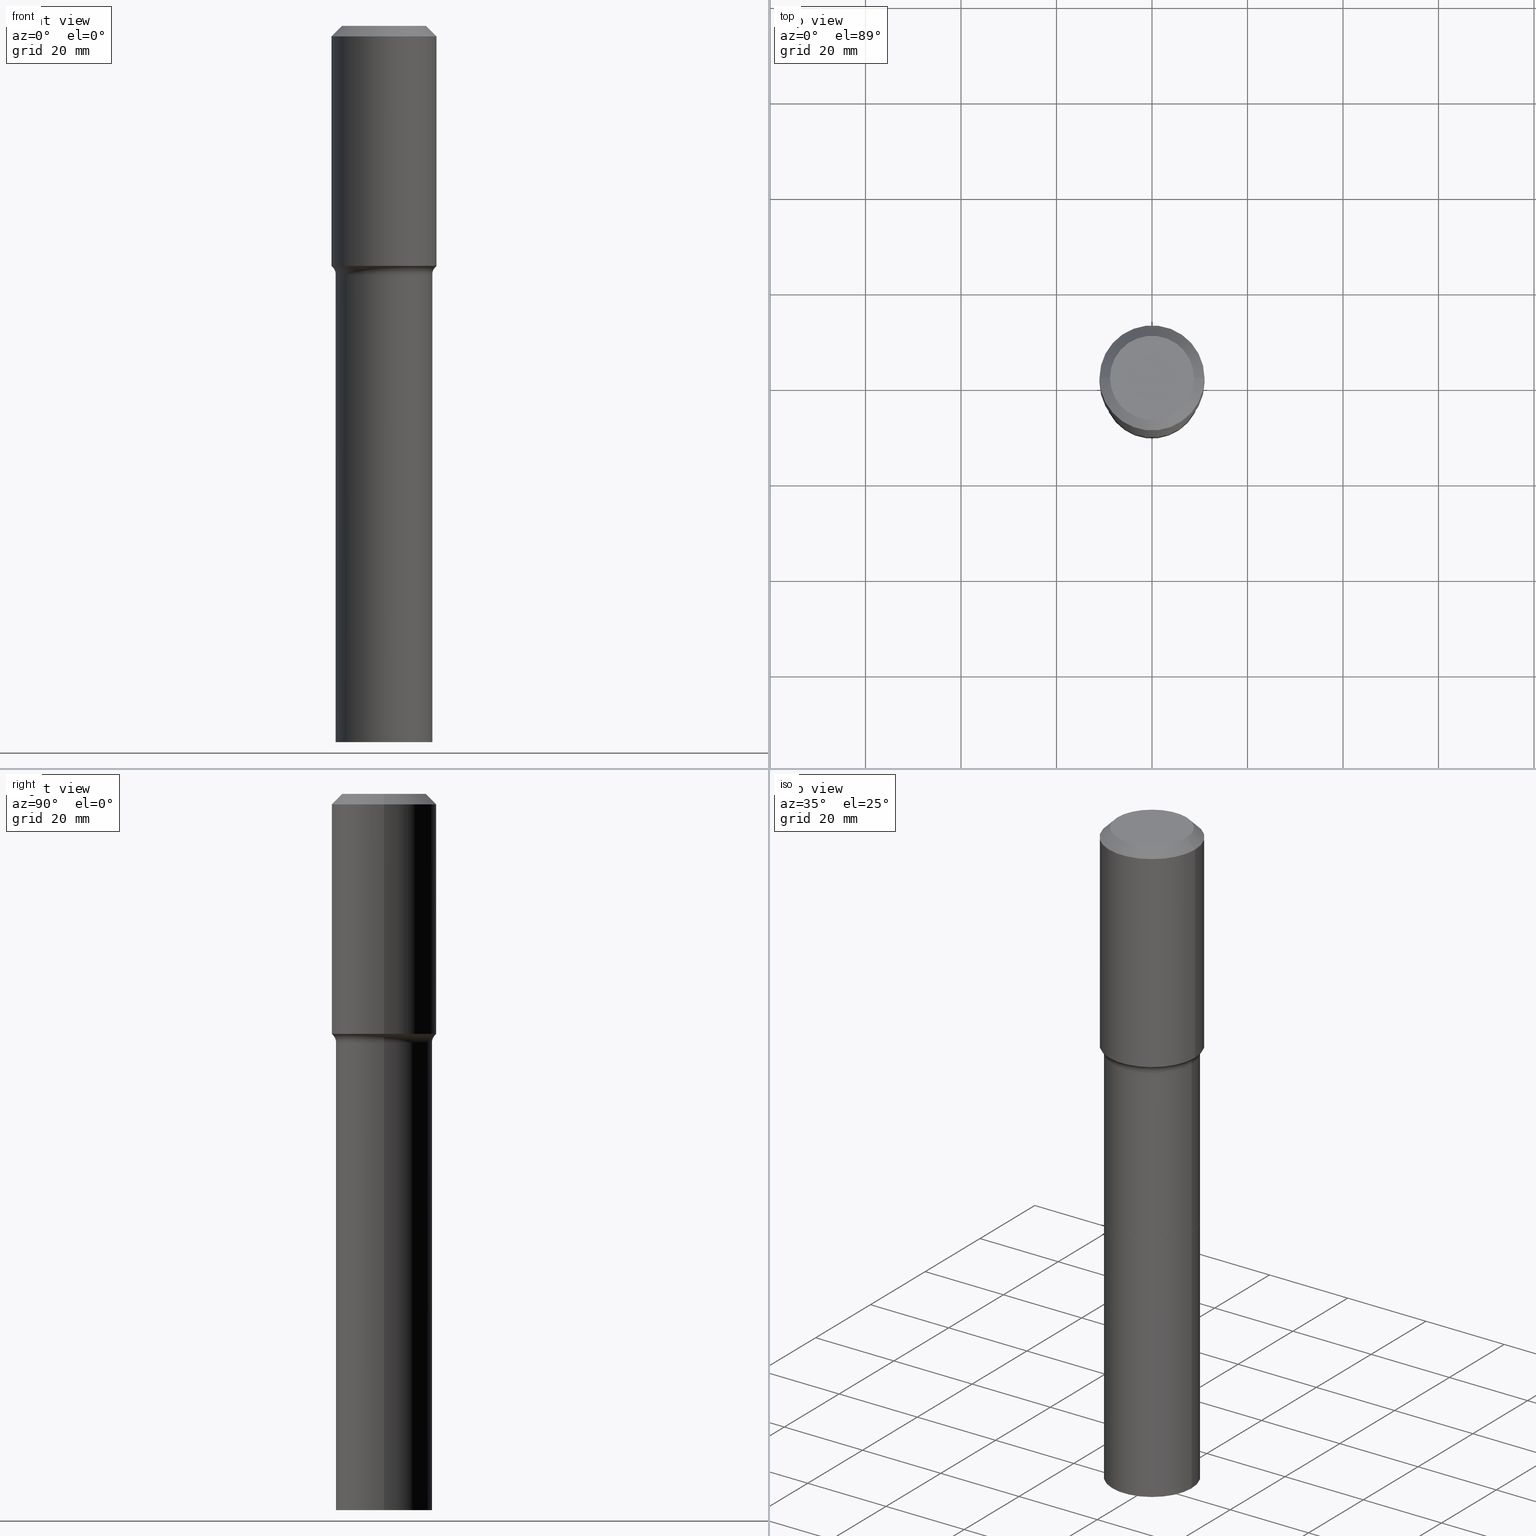
[diagram: canonical four-view strip — front | top / right | iso, engineering-drawing reading convention]
A machine part, canonical four-view strip (front | top / right | iso — engineering-drawing reading convention). The complete STEP part file that produces these views, byte-faithful:
ISO-10303-21;
HEADER;
FILE_DESCRIPTION (( 'STEP AP203' ),
    '1' );
FILE_NAME ('58864.STEP',
    '2025-04-01T15:25:54',
    ( '' ),
    ( '' ),
    'SwSTEP 2.0',
    'SolidWorks 2024',
    '' );
FILE_SCHEMA (( 'CONFIG_CONTROL_DESIGN' ));
ENDSEC;

DATA;
#1 = PERSON_AND_ORGANIZATION ( #171, #297 ) ;
#2 = CIRCLE ( 'NONE', #316, 0.3984500000000000264 ) ;
#3 = SHAPE_DEFINITION_REPRESENTATION ( #134, #43 ) ;
#4 = ADVANCED_FACE ( 'NONE', ( #234 ), #505, .T. ) ;
#5 = CC_DESIGN_PERSON_AND_ORGANIZATION_ASSIGNMENT ( #484, #292, ( #285 ) ) ;
#6 = AXIS2_PLACEMENT_3D ( 'NONE', #232, #419, #158 ) ;
#7 = EDGE_CURVE ( 'NONE', #50, #20, #483, .T. ) ;
#8 = ORIENTED_EDGE ( 'NONE', *, *, #40, .F. ) ;
#9 = FACE_OUTER_BOUND ( 'NONE', #105, .T. ) ;
#10 = ORIENTED_EDGE ( 'NONE', *, *, #103, .T. ) ;
#11 = DIRECTION ( 'NONE',  ( 1.000000000000000000, -6.982962677686268288E-15, 0.000000000000000000 ) ) ;
#12 = CARTESIAN_POINT ( 'NONE',  ( 2.118020533036960747E-30, -3.023971987572067913E-16, -0.08661000000000056154 ) ) ;
#13 = ORIENTED_EDGE ( 'NONE', *, *, #488, .F. ) ;
#14 = CARTESIAN_POINT ( 'NONE',  ( 0.000000000000000000, 0.000000000000000000, 0.000000000000000000 ) ) ;
#15 = DIRECTION ( 'NONE',  ( 1.000000000000000000, -6.982962677686264344E-15, 0.000000000000000000 ) ) ;
#16 = CIRCLE ( 'NONE', #453, 0.4330500000000002681 ) ;
#17 = AXIS2_PLACEMENT_3D ( 'NONE', #14, #107, #422 ) ;
#18 = ORIENTED_EDGE ( 'NONE', *, *, #167, .T. ) ;
#19 = FACE_OUTER_BOUND ( 'NONE', #183, .T. ) ;
#20 = VERTEX_POINT ( 'NONE', #220 ) ;
#21 = CARTESIAN_POINT ( 'NONE',  ( 2.118020533036960747E-30, -3.023971987572067913E-16, -0.08661000000000056154 ) ) ;
#22 = EDGE_CURVE ( 'NONE', #305, #95, #100, .T. ) ;
#23 = DIRECTION ( 'NONE',  ( -2.445468806185136597E-29, 3.491481338843145583E-15, 1.000000000000000000 ) ) ;
#24 = ORIENTED_EDGE ( 'NONE', *, *, #175, .T. ) ;
#25 = ORIENTED_EDGE ( 'NONE', *, *, #206, .F. ) ;
#26 = EDGE_LOOP ( 'NONE', ( #24, #420, #491, #264 ) ) ;
#27 = CARTESIAN_POINT ( 'NONE',  ( 0.4199417038704662541, -9.890750522430396773E-15, -1.992940131194999465 ) ) ;
#28 = DIRECTION ( 'NONE',  ( 0.7071067811864026886, -2.468850131080739687E-15, 0.7071067811866923458 ) ) ;
#29 = FACE_OUTER_BOUND ( 'NONE', #179, .T. ) ;
#30 = CARTESIAN_POINT ( 'NONE',  ( 0.4330500000000000460, -3.326369186329244629E-15, -0.08661000000000056154 ) ) ;
#31 = AXIS2_PLACEMENT_3D ( 'NONE', #255, #335, #151 ) ;
#32 = EDGE_CURVE ( 'NONE', #92, #259, #84, .T. ) ;
#33 = VECTOR ( 'NONE', #241, 39.37007874015748143 ) ;
#34 = PLANE ( 'NONE',  #405 ) ;
#35 = CARTESIAN_POINT ( 'NONE',  ( -0.4330500000000001570, 3.077005317209114971E-15, -2.130144840834887965E-29 ) ) ;
#36 = PERSON_AND_ORGANIZATION_ROLE ( 'design_owner' ) ;
#37 = APPLICATION_CONTEXT ( 'configuration controlled 3d designs of mechanical parts and assemblies' ) ;
#38 = VECTOR ( 'NONE', #197, 39.37007874015748143 ) ;
#39 = DIRECTION ( 'NONE',  ( -1.000000000000000000, 6.982962677686265922E-15, -4.876176775795935793E-29 ) ) ;
#40 = EDGE_CURVE ( 'NONE', #141, #424, #223, .T. ) ;
#41 = PERSON_AND_ORGANIZATION_ROLE ( 'classification_officer' ) ;
#42 = LINE ( 'NONE', #440, #357 ) ;
#43 = ADVANCED_BREP_SHAPE_REPRESENTATION ( '58864', ( #312, #144, #379 ), #411 ) ;
#44 = EDGE_CURVE ( 'NONE', #374, #141, #463, .T. ) ;
#45 = DATE_AND_TIME ( #136, #178 ) ;
#46 = AXIS2_PLACEMENT_3D ( 'NONE', #118, #432, #311 ) ;
#47 = CIRCLE ( 'NONE', #318, 0.3984500000000000264 ) ;
#48 = DATE_TIME_ROLE ( 'classification_date' ) ;
#49 = ADVANCED_FACE ( 'NONE', ( #19 ), #364, .T. ) ;
#50 = VERTEX_POINT ( 'NONE', #417 ) ;
#51 = AXIS2_PLACEMENT_3D ( 'NONE', #310, #507, #457 ) ;
#52 = CARTESIAN_POINT ( 'NONE',  ( 0.000000000000000000, 0.000000000000000000, 0.000000000000000000 ) ) ;
#53 = VERTEX_POINT ( 'NONE', #455 ) ;
#54 = ORIENTED_EDGE ( 'NONE', *, *, #448, .T. ) ;
#55 = CARTESIAN_POINT ( 'NONE',  ( -0.3984500000000000264, -9.631685108364488032E-15, -3.569499999999999673 ) ) ;
#56 = ORIENTED_EDGE ( 'NONE', *, *, #213, .T. ) ;
#57 = CYLINDRICAL_SURFACE ( 'NONE', #17, 0.4330500000000001570 ) ;
#58 = DIRECTION ( 'NONE',  ( 7.105427357601001859E-15, 1.000000000000000000, -3.491481338843145583E-15 ) ) ;
#59 = ADVANCED_FACE ( 'NONE', ( #9 ), #383, .F. ) ;
#60 = APPROVAL ( #450, 'UNSPECIFIED' ) ;
#61 = ORIENTED_EDGE ( 'NONE', *, *, #415, .T. ) ;
#62 = DIRECTION ( 'NONE',  ( 1.000000000000000000, -6.982962677686264344E-15, 0.000000000000000000 ) ) ;
#63 = VECTOR ( 'NONE', #281, 39.37007874015748143 ) ;
#64 = ORIENTED_EDGE ( 'NONE', *, *, #81, .F. ) ;
#65 = CARTESIAN_POINT ( 'NONE',  ( 8.729100903677844984E-29, -1.246284263900060702E-14, -3.569499999999999673 ) ) ;
#66 = VERTEX_POINT ( 'NONE', #109 ) ;
#67 = DIRECTION ( 'NONE',  ( 1.000000000000000000, -6.982962677686265922E-15, 4.876202609618050646E-29 ) ) ;
#68 = FACE_OUTER_BOUND ( 'NONE', #161, .T. ) ;
#69 = CYLINDRICAL_SURFACE ( 'NONE', #132, 0.3984500000000000264 ) ;
#70 = DIRECTION ( 'NONE',  ( 1.000000000000000000, -6.982962677686264344E-15, 0.000000000000000000 ) ) ;
#71 = FACE_OUTER_BOUND ( 'NONE', #332, .T. ) ;
#72 = ADVANCED_FACE ( 'NONE', ( #429 ), #69, .T. ) ;
#73 = DIRECTION ( 'NONE',  ( -2.445468806185136597E-29, 3.491481338843145583E-15, 1.000000000000000000 ) ) ;
#74 = CARTESIAN_POINT ( 'NONE',  ( -0.3984500000000000264, -6.973794939170142747E-15, -3.568999999999999506 ) ) ;
#75 = DIRECTION ( 'NONE',  ( 1.000000000000000000, -6.982962677686266711E-15, 0.000000000000000000 ) ) ;
#76 = VECTOR ( 'NONE', #145, 39.37007874015748143 ) ;
#77 = APPROVAL_PERSON_ORGANIZATION ( #360, #367, #518 ) ;
#78 = DIRECTION ( 'NONE',  ( 1.000000000000000000, -6.982962677686268288E-15, 0.000000000000000000 ) ) ;
#79 = DIRECTION ( 'NONE',  ( -2.445468806185136597E-29, 3.491481338843145583E-15, 1.000000000000000000 ) ) ;
#80 = MECHANICAL_CONTEXT ( 'NONE', #486, 'mechanical' ) ;
#81 = EDGE_CURVE ( 'NONE', #53, #50, #155, .T. ) ;
#82 = DIRECTION ( 'NONE',  ( -2.445468806185136597E-29, 3.491481338843145583E-15, 1.000000000000000000 ) ) ;
#83 = PRODUCT_RELATED_PRODUCT_CATEGORY ( 'detail', '', ( #462 ) ) ;
#84 = CIRCLE ( 'NONE', #295, 0.4330500000000002681 ) ;
#85 = DIRECTION ( 'NONE',  ( 2.438088387897960049E-29, -3.491481338843145188E-15, -1.000000000000000000 ) ) ;
#86 = PERSON_AND_ORGANIZATION ( #171, #297 ) ;
#87 = EDGE_CURVE ( 'NONE', #456, #374, #148, .T. ) ;
#88 = CALENDAR_DATE ( 2025, 1, 4 ) ;
#89 = PERSON_AND_ORGANIZATION_ROLE ( 'creator' ) ;
#90 = AXIS2_PLACEMENT_3D ( 'NONE', #514, #385, #499 ) ;
#91 = SECURITY_CLASSIFICATION_LEVEL ( 'unclassified' ) ;
#92 = VERTEX_POINT ( 'NONE', #301 ) ;
#93 = CC_DESIGN_PERSON_AND_ORGANIZATION_ASSIGNMENT ( #366, #89, ( #285 ) ) ;
#94 = ORIENTED_EDGE ( 'NONE', *, *, #478, .T. ) ;
#95 = VERTEX_POINT ( 'NONE', #471 ) ;
#96 = CARTESIAN_POINT ( 'NONE',  ( 0.3984500000000000264, -1.524520411792469959E-14, -3.569499999999999673 ) ) ;
#97 = AXIS2_PLACEMENT_3D ( 'NONE', #266, #102, #511 ) ;
#98 = VECTOR ( 'NONE', #240, 39.37007874015748143 ) ;
#99 = DIRECTION ( 'NONE',  ( 1.000000000000000000, -6.982962677686264344E-15, 0.000000000000000000 ) ) ;
#100 = CIRCLE ( 'NONE', #508, 0.4199417038704662541 ) ;
#101 = ORIENTED_EDGE ( 'NONE', *, *, #206, .T. ) ;
#102 = DIRECTION ( 'NONE',  ( -2.445468806185136597E-29, 3.491481338843145583E-15, 1.000000000000000000 ) ) ;
#103 = EDGE_CURVE ( 'NONE', #305, #424, #251, .T. ) ;
#104 = EDGE_CURVE ( 'NONE', #418, #141, #323, .T. ) ;
#105 = EDGE_LOOP ( 'NONE', ( #249, #152 ) ) ;
#106 = ORIENTED_EDGE ( 'NONE', *, *, #291, .T. ) ;
#107 = DIRECTION ( 'NONE',  ( -2.445468806185136597E-29, 3.491481338843145583E-15, 1.000000000000000000 ) ) ;
#108 = CYLINDRICAL_SURFACE ( 'NONE', #199, 0.3984500000000000264 ) ;
#109 = CARTESIAN_POINT ( 'NONE',  ( 0.3464400000000000257, -2.825043391520069124E-15, 3.855188123734197880E-18 ) ) ;
#110 = VERTEX_POINT ( 'NONE', #190 ) ;
#111 = DIRECTION ( 'NONE',  ( -2.445468806185136597E-29, 3.491481338843145583E-15, 1.000000000000000000 ) ) ;
#112 = CARTESIAN_POINT ( 'NONE',  ( 1.444171603492632270E-28, -2.061894304653819197E-14, -5.905499999999999972 ) ) ;
#113 = CIRCLE ( 'NONE', #398, 0.3464400000000000257 ) ;
#114 = DIRECTION ( 'NONE',  ( 1.000000000000000000, -6.982962677686268288E-15, 0.000000000000000000 ) ) ;
#115 = EDGE_CURVE ( 'NONE', #141, #418, #209, .T. ) ;
#116 = ORIENTED_EDGE ( 'NONE', *, *, #7, .T. ) ;
#117 = CARTESIAN_POINT ( 'NONE',  ( -0.4784499999999997644, -3.749216322037140678E-15, -2.047499999999999432 ) ) ;
#118 = CARTESIAN_POINT ( 'NONE',  ( 0.4784499999999997644, -1.048980653442033139E-14, -2.047499999999999432 ) ) ;
#119 = DIRECTION ( 'NONE',  ( -2.445468806185136597E-29, 3.491481338843145583E-15, 1.000000000000000000 ) ) ;
#120 = CARTESIAN_POINT ( 'NONE',  ( 5.007097380664065231E-29, -7.148808041281338737E-15, -2.047499999999999432 ) ) ;
#121 = COORDINATED_UNIVERSAL_TIME_OFFSET ( 5, 0, .BEHIND. ) ;
#122 = CARTESIAN_POINT ( 'NONE',  ( -0.3984499999999999709, 2.831157530636118984E-15, -1.959949686712066901E-29 ) ) ;
#123 = AXIS2_PLACEMENT_3D ( 'NONE', #235, #423, #473 ) ;
#124 = CC_DESIGN_APPROVAL ( #214, ( #285 ) ) ;
#125 =( NAMED_UNIT ( * ) SI_UNIT ( $, .STERADIAN. ) SOLID_ANGLE_UNIT ( ) );
#126 = DIRECTION ( 'NONE',  ( -1.000000000000000000, 6.982962677686265922E-15, -4.876176775795935793E-29 ) ) ;
#127 = ADVANCED_FACE ( 'NONE', ( #465 ), #265, .F. ) ;
#128 = CC_DESIGN_DATE_AND_TIME_ASSIGNMENT ( #434, #288, ( #327 ) ) ;
#129 = CARTESIAN_POINT ( 'NONE',  ( 4.873672923431885460E-29, -6.958313277498951466E-15, -1.992940131194999465 ) ) ;
#130 = CARTESIAN_POINT ( 'NONE',  ( 0.4199417038704662541, -9.890750522430396773E-15, -1.992940131194999465 ) ) ;
#131 = CARTESIAN_POINT ( 'NONE',  ( 0.000000000000000000, 0.000000000000000000, 0.000000000000000000 ) ) ;
#132 = AXIS2_PLACEMENT_3D ( 'NONE', #65, #349, #99 ) ;
#133 = AXIS2_PLACEMENT_3D ( 'NONE', #131, #480, #280 ) ;
#134 = PRODUCT_DEFINITION_SHAPE ( 'NONE', 'NONE',  #327 ) ;
#135 = CC_DESIGN_APPROVAL ( #60, ( #477 ) ) ;
#136 = CALENDAR_DATE ( 2025, 1, 4 ) ;
#137 = AXIS2_PLACEMENT_3D ( 'NONE', #399, #322, #39 ) ;
#138 = DESIGN_CONTEXT ( 'detailed design', #37, 'design' ) ;
#139 = EDGE_CURVE ( 'NONE', #92, #110, #193, .T. ) ;
#140 = APPROVAL_DATE_TIME ( #446, #214 ) ;
#141 = VERTEX_POINT ( 'NONE', #164 ) ;
#142 = CALENDAR_DATE ( 2025, 1, 4 ) ;
#143 = VERTEX_POINT ( 'NONE', #470 ) ;
#144 = MANIFOLD_SOLID_BREP ( 'Body-Move/Copy2[2]', #407 ) ;
#145 = DIRECTION ( 'NONE',  ( -2.445468806185136877E-29, 3.491481338843145188E-15, 1.000000000000000000 ) ) ;
#146 = ORIENTED_EDGE ( 'NONE', *, *, #87, .T. ) ;
#147 = DIRECTION ( 'NONE',  ( 1.000000000000000000, -6.982962677686264344E-15, 0.000000000000000000 ) ) ;
#148 = CIRCLE ( 'NONE', #31, 0.3979500000000000814 ) ;
#149 = LOCAL_TIME ( 11, 25, 54.00000000000000000, #361 ) ;
#150 = CONICAL_SURFACE ( 'NONE', #436, 0.3979500000000000814, 0.7853981633972434429 ) ;
#151 = DIRECTION ( 'NONE',  ( 1.000000000000000000, -6.982962677686264344E-15, 0.000000000000000000 ) ) ;
#152 = ORIENTED_EDGE ( 'NONE', *, *, #87, .F. ) ;
#153 = CARTESIAN_POINT ( 'NONE',  ( -0.3464400000000000257, 2.570376189436231151E-15, 3.855188123698415642E-18 ) ) ;
#154 = FACE_OUTER_BOUND ( 'NONE', #409, .T. ) ;
#155 = LINE ( 'NONE', #55, #481 ) ;
#156 = ORIENTED_EDGE ( 'NONE', *, *, #304, .T. ) ;
#157 = CARTESIAN_POINT ( 'NONE',  ( -0.3979500000000000814, -9.632588594869177729E-15, -3.569499999999999673 ) ) ;
#158 = DIRECTION ( 'NONE',  ( 1.000000000000000000, -6.982962677686265922E-15, 4.876176775795935793E-29 ) ) ;
#159 = ADVANCED_FACE ( 'NONE', ( #237 ), #392, .T. ) ;
#160 = EDGE_LOOP ( 'NONE', ( #18, #452, #302, #487 ) ) ;
#161 = EDGE_LOOP ( 'NONE', ( #195, #330, #253, #500 ) ) ;
#162 = DIRECTION ( 'NONE',  ( 1.000000000000000000, -6.982962677686266711E-15, 0.000000000000000000 ) ) ;
#163 = DIRECTION ( 'NONE',  ( -1.000000000000000000, 6.982962677686266711E-15, 0.000000000000000000 ) ) ;
#164 = CARTESIAN_POINT ( 'NONE',  ( 0.3984500000000000264, -1.524345837725527730E-14, -3.568999999999999506 ) ) ;
#165 = PERSON_AND_ORGANIZATION ( #171, #297 ) ;
#166 = APPROVAL_STATUS ( 'not_yet_approved' ) ;
#167 = EDGE_CURVE ( 'NONE', #259, #92, #16, .T. ) ;
#168 = AXIS2_PLACEMENT_3D ( 'NONE', #461, #299, #75 ) ;
#169 = AXIS2_PLACEMENT_3D ( 'NONE', #191, #467, #342 ) ;
#170 = LINE ( 'NONE', #437, #33 ) ;
#171 = PERSON ( 'UNSPECIFIED', 'UNSPECIFIED', 'UNSPECIFIED', ('UNSPECIFIED'), ('UNSPECIFIED'), ('UNSPECIFIED') ) ;
#172 = CONICAL_SURFACE ( 'NONE', #90, 0.4330500000000000460, 0.7853981633974452814 ) ;
#173 = AXIS2_PLACEMENT_3D ( 'NONE', #129, #479, #78 ) ;
#174 = CC_DESIGN_SECURITY_CLASSIFICATION ( #477, ( #285 ) ) ;
#175 = EDGE_CURVE ( 'NONE', #143, #53, #2, .T. ) ;
#176 = EDGE_CURVE ( 'NONE', #66, #468, #284, .T. ) ;
#177 = CIRCLE ( 'NONE', #466, 0.4330500000000000460 ) ;
#178 = LOCAL_TIME ( 11, 25, 54.00000000000000000, #482 ) ;
#179 = EDGE_LOOP ( 'NONE', ( #412, #146, #375, #337 ) ) ;
#180 = EDGE_LOOP ( 'NONE', ( #186, #101, #217, #414 ) ) ;
#181 = EDGE_CURVE ( 'NONE', #424, #343, #442, .T. ) ;
#182 = DIRECTION ( 'NONE',  ( -2.438088387897960049E-29, 3.491481338843145188E-15, 1.000000000000000000 ) ) ;
#183 = EDGE_LOOP ( 'NONE', ( #306, #156, #298, #369 ) ) ;
#184 = FACE_OUTER_BOUND ( 'NONE', #464, .T. ) ;
#185 = CARTESIAN_POINT ( 'NONE',  ( 8.729100903677844984E-29, -1.246284263900060702E-14, -3.569499999999999673 ) ) ;
#186 = ORIENTED_EDGE ( 'NONE', *, *, #402, .F. ) ;
#187 = DIRECTION ( 'NONE',  ( -2.445468806185136597E-29, 3.491481338843145583E-15, 1.000000000000000000 ) ) ;
#188 = CIRCLE ( 'NONE', #168, 0.4330500000000000460 ) ;
#189 = APPROVAL_PERSON_ORGANIZATION ( #212, #214, #293 ) ;
#190 = CARTESIAN_POINT ( 'NONE',  ( -0.4330500000000000460, -5.288101724469795509E-16, -0.08661000000000056154 ) ) ;
#191 = CARTESIAN_POINT ( 'NONE',  ( 8.729100903677844984E-29, -1.246284263900060702E-14, -3.569499999999999673 ) ) ;
#192 = ORIENTED_EDGE ( 'NONE', *, *, #213, .F. ) ;
#193 = LINE ( 'NONE', #35, #242 ) ;
#194 = EDGE_LOOP ( 'NONE', ( #64, #61, #497, #294 ) ) ;
#195 = ORIENTED_EDGE ( 'NONE', *, *, #304, .F. ) ;
#196 = DIRECTION ( 'NONE',  ( 1.000000000000000000, -6.982962677686266711E-15, 0.000000000000000000 ) ) ;
#197 = DIRECTION ( 'NONE',  ( 0.6819983600624978104, -2.208861293262467914E-15, 0.7313537016191711260 ) ) ;
#198 = ADVANCED_FACE ( 'NONE', ( #68 ), #172, .T. ) ;
#199 = AXIS2_PLACEMENT_3D ( 'NONE', #430, #261, #62 ) ;
#200 = PLANE ( 'NONE',  #516 ) ;
#201 = CC_DESIGN_APPROVAL ( #367, ( #327 ) ) ;
#202 = DIRECTION ( 'NONE',  ( -1.000000000000000000, 7.105427357601001859E-15, 0.000000000000000000 ) ) ;
#203 = CARTESIAN_POINT ( 'NONE',  ( -0.4199417038704662541, -3.974448006220161226E-15, -1.992940131194999465 ) ) ;
#204 = VECTOR ( 'NONE', #325, 39.37007874015748143 ) ;
#205 = DIRECTION ( 'NONE',  ( -0.7071067811865453523, 2.468850131082234184E-15, -0.7071067811865496822 ) ) ;
#206 = EDGE_CURVE ( 'NONE', #95, #343, #377, .T. ) ;
#207 = DIRECTION ( 'NONE',  ( -2.445468806185136877E-29, 3.491481338843145188E-15, 1.000000000000000000 ) ) ;
#208 = COORDINATED_UNIVERSAL_TIME_OFFSET ( 5, 0, .BEHIND. ) ;
#209 = CIRCLE ( 'NONE', #97, 0.3984500000000000264 ) ;
#210 = LOCAL_TIME ( 11, 25, 54.00000000000000000, #121 ) ;
#211 = AXIS2_PLACEMENT_3D ( 'NONE', #120, #340, #345 ) ;
#212 = PERSON_AND_ORGANIZATION ( #171, #297 ) ;
#213 = EDGE_CURVE ( 'NONE', #305, #259, #389, .T. ) ;
#214 = APPROVAL ( #328, 'UNSPECIFIED' ) ;
#215 = ORIENTED_EDGE ( 'NONE', *, *, #175, .F. ) ;
#216 = ADVANCED_FACE ( 'NONE', ( #154 ), #150, .T. ) ;
#217 = ORIENTED_EDGE ( 'NONE', *, *, #488, .T. ) ;
#218 = ORIENTED_EDGE ( 'NONE', *, *, #32, .T. ) ;
#219 = CLOSED_SHELL ( 'NONE', ( #262, #277, #72, #504 ) ) ;
#220 = CARTESIAN_POINT ( 'NONE',  ( 0.3984500000000000264, -1.524520411792469959E-14, -3.569499999999999673 ) ) ;
#221 = ORIENTED_EDGE ( 'NONE', *, *, #22, .T. ) ;
#222 = DIRECTION ( 'NONE',  ( 1.000000000000000000, -6.982962677686264344E-15, 0.000000000000000000 ) ) ;
#223 = LINE ( 'NONE', #496, #76 ) ;
#224 = ORIENTED_EDGE ( 'NONE', *, *, #373, .T. ) ;
#225 = CARTESIAN_POINT ( 'NONE',  ( 8.729100903677844984E-29, -1.246284263900060702E-14, -3.569499999999999673 ) ) ;
#226 = VECTOR ( 'NONE', #207, 39.37007874015748143 ) ;
#227 = FACE_OUTER_BOUND ( 'NONE', #384, .T. ) ;
#228 = ORIENTED_EDGE ( 'NONE', *, *, #176, .T. ) ;
#229 = DIRECTION ( 'NONE',  ( 1.000000000000000000, -6.982962677686266711E-15, 0.000000000000000000 ) ) ;
#230 = ORIENTED_EDGE ( 'NONE', *, *, #359, .T. ) ;
#231 = EDGE_CURVE ( 'NONE', #258, #110, #188, .T. ) ;
#232 = CARTESIAN_POINT ( 'NONE',  ( 0.000000000000000000, 0.000000000000000000, 0.000000000000000000 ) ) ;
#233 = CC_DESIGN_PERSON_AND_ORGANIZATION_ASSIGNMENT ( #1, #36, ( #462 ) ) ;
#234 = FACE_OUTER_BOUND ( 'NONE', #160, .T. ) ;
#235 = CARTESIAN_POINT ( 'NONE',  ( -9.427742298522546243E-47, 1.346031739168365344E-32, 3.855188123715862256E-18 ) ) ;
#236 = FACE_OUTER_BOUND ( 'NONE', #256, .T. ) ;
#237 = FACE_OUTER_BOUND ( 'NONE', #333, .T. ) ;
#238 = ADVANCED_FACE ( 'NONE', ( #71 ), #447, .F. ) ;
#239 = LINE ( 'NONE', #401, #410 ) ;
#240 = DIRECTION ( 'NONE',  ( -0.6819983600624978104, 7.399397606724284998E-15, 0.7313537016191711260 ) ) ;
#241 = DIRECTION ( 'NONE',  ( -2.445468806185136877E-29, 3.491481338843145188E-15, 1.000000000000000000 ) ) ;
#242 = VECTOR ( 'NONE', #307, 39.37007874015748143 ) ;
#243 = APPROVAL_PERSON_ORGANIZATION ( #250, #60, #408 ) ;
#244 = LINE ( 'NONE', #122, #226 ) ;
#245 = AXIS2_PLACEMENT_3D ( 'NONE', #270, #73, #222 ) ;
#246 = LOCAL_TIME ( 11, 25, 54.00000000000000000, #208 ) ;
#247 = CC_DESIGN_PERSON_AND_ORGANIZATION_ASSIGNMENT ( #86, #41, ( #477 ) ) ;
#248 = APPROVAL_DATE_TIME ( #45, #60 ) ;
#249 = ORIENTED_EDGE ( 'NONE', *, *, #359, .F. ) ;
#250 = PERSON_AND_ORGANIZATION ( #171, #297 ) ;
#251 = CIRCLE ( 'NONE', #46, 0.07999999999999983513 ) ;
#252 = ORIENTED_EDGE ( 'NONE', *, *, #40, .T. ) ;
#253 = ORIENTED_EDGE ( 'NONE', *, *, #324, .T. ) ;
#254 = ORIENTED_EDGE ( 'NONE', *, *, #115, .T. ) ;
#255 = CARTESIAN_POINT ( 'NONE',  ( 8.729100903677844984E-29, -1.246284263900060702E-14, -3.569499999999999673 ) ) ;
#256 = EDGE_LOOP ( 'NONE', ( #54, #116 ) ) ;
#257 = CARTESIAN_POINT ( 'NONE',  ( 4.839297147893728849E-29, -6.909233780554982350E-15, -1.978883204583949729 ) ) ;
#258 = VERTEX_POINT ( 'NONE', #30 ) ;
#259 = VERTEX_POINT ( 'NONE', #272 ) ;
#260 = FACE_OUTER_BOUND ( 'NONE', #502, .T. ) ;
#261 = DIRECTION ( 'NONE',  ( -2.445468806185136597E-29, 3.491481338843145583E-15, 1.000000000000000000 ) ) ;
#262 = ADVANCED_FACE ( 'NONE', ( #269 ), #108, .T. ) ;
#263 = DIRECTION ( 'NONE',  ( -2.445468806185136877E-29, 3.491481338843145188E-15, 1.000000000000000000 ) ) ;
#264 = ORIENTED_EDGE ( 'NONE', *, *, #339, .F. ) ;
#265 = TOROIDAL_SURFACE ( 'NONE', #211, 0.4784499999999997644, 0.07999999999999986289 ) ;
#266 = CARTESIAN_POINT ( 'NONE',  ( 8.727878169274752182E-29, -1.246109689833118472E-14, -3.568999999999999506 ) ) ;
#267 = DIRECTION ( 'NONE',  ( -2.445468806185136597E-29, 3.491481338843145583E-15, 1.000000000000000000 ) ) ;
#268 = CARTESIAN_POINT ( 'NONE',  ( -9.427742298522546243E-47, 1.346031739168365344E-32, 3.855188123715862256E-18 ) ) ;
#269 = FACE_OUTER_BOUND ( 'NONE', #26, .T. ) ;
#270 = CARTESIAN_POINT ( 'NONE',  ( 8.727878169274752182E-29, -1.246109689833118472E-14, -3.568999999999999506 ) ) ;
#271 = DIRECTION ( 'NONE',  ( -2.445468806185136597E-29, 3.491481338843145583E-15, 1.000000000000000000 ) ) ;
#272 = CARTESIAN_POINT ( 'NONE',  ( 0.4330500000000002681, -9.933205768127022062E-15, -1.978883204583949729 ) ) ;
#273 = ADVANCED_FACE ( 'NONE', ( #227 ), #200, .F. ) ;
#274 = CALENDAR_DATE ( 2025, 1, 4 ) ;
#275 = VECTOR ( 'NONE', #28, 39.37007874015748143 ) ;
#276 = AXIS2_PLACEMENT_3D ( 'NONE', #344, #119, #11 ) ;
#277 = ADVANCED_FACE ( 'NONE', ( #358 ), #317, .T. ) ;
#278 = APPLICATION_PROTOCOL_DEFINITION ( 'international standard', 'config_control_design', 1994, #486 ) ;
#279 = CARTESIAN_POINT ( 'NONE',  ( 4.873672923431885460E-29, -6.958313277498951466E-15, -1.992940131194999465 ) ) ;
#280 = DIRECTION ( 'NONE',  ( 1.000000000000000000, -6.982962677686265922E-15, 4.876176775795935793E-29 ) ) ;
#281 = DIRECTION ( 'NONE',  ( -0.7071067811864026886, 7.493145998869830357E-15, 0.7071067811866923458 ) ) ;
#282 =( CONVERSION_BASED_UNIT ( 'INCH', #444 ) LENGTH_UNIT ( ) NAMED_UNIT ( #394 ) );
#283 = CC_DESIGN_PERSON_AND_ORGANIZATION_ASSIGNMENT ( #165, #474, ( #327 ) ) ;
#284 = CIRCLE ( 'NONE', #123, 0.3464400000000000257 ) ;
#285 = PRODUCT_DEFINITION_FORMATION_WITH_SPECIFIED_SOURCE ( 'ANY', '', #462, .NOT_KNOWN. ) ;
#286 = DIRECTION ( 'NONE',  ( 0.000000000000000000, 0.000000000000000000, 1.000000000000000000 ) ) ;
#287 = DIRECTION ( 'NONE',  ( 2.438088387897960049E-29, -3.491481338843145188E-15, -1.000000000000000000 ) ) ;
#288 = DATE_TIME_ROLE ( 'creation_date' ) ;
#289 = ADVANCED_FACE ( 'NONE', ( #443 ), #425, .T. ) ;
#290 = AXIS2_PLACEMENT_3D ( 'NONE', #279, #79, #475 ) ;
#291 = EDGE_CURVE ( 'NONE', #418, #343, #244, .T. ) ;
#292 = PERSON_AND_ORGANIZATION_ROLE ( 'design_supplier' ) ;
#293 = APPROVAL_ROLE ( '' ) ;
#294 = ORIENTED_EDGE ( 'NONE', *, *, #7, .F. ) ;
#295 = AXIS2_PLACEMENT_3D ( 'NONE', #387, #267, #229 ) ;
#296 = ORIENTED_EDGE ( 'NONE', *, *, #319, .T. ) ;
#297 = ORGANIZATION ( 'UNSPECIFIED', 'UNSPECIFIED', '' ) ;
#298 = ORIENTED_EDGE ( 'NONE', *, *, #231, .T. ) ;
#299 = DIRECTION ( 'NONE',  ( -2.445468806185136597E-29, 3.491481338843145583E-15, 1.000000000000000000 ) ) ;
#300 = LOCAL_TIME ( 11, 25, 54.00000000000000000, #445 ) ;
#301 = CARTESIAN_POINT ( 'NONE',  ( -0.4330500000000002681, -3.832228463345867380E-15, -1.978883204583949729 ) ) ;
#302 = ORIENTED_EDGE ( 'NONE', *, *, #231, .F. ) ;
#303 = DIRECTION ( 'NONE',  ( -2.445468806185136597E-29, 3.491481338843145583E-15, 1.000000000000000000 ) ) ;
#304 = EDGE_CURVE ( 'NONE', #66, #258, #239, .T. ) ;
#305 = VERTEX_POINT ( 'NONE', #130 ) ;
#306 = ORIENTED_EDGE ( 'NONE', *, *, #176, .F. ) ;
#307 = DIRECTION ( 'NONE',  ( -2.445468806185136877E-29, 3.491481338843145188E-15, 1.000000000000000000 ) ) ;
#308 = DIRECTION ( 'NONE',  ( 1.000000000000000000, -6.982962677686266711E-15, 4.876176775795935793E-29 ) ) ;
#309 = ORIENTED_EDGE ( 'NONE', *, *, #104, .T. ) ;
#310 = CARTESIAN_POINT ( 'NONE',  ( 5.007097380664065231E-29, -7.148808041281338737E-15, -2.047499999999999432 ) ) ;
#311 = DIRECTION ( 'NONE',  ( 1.000000000000000000, -6.982962677686273810E-15, 0.000000000000000000 ) ) ;
#312 = MANIFOLD_SOLID_BREP ( 'Body-Move/Copy2[1]', #219 ) ;
#313 = CARTESIAN_POINT ( 'NONE',  ( 0.000000000000000000, 0.000000000000000000, 0.000000000000000000 ) ) ;
#314 = CC_DESIGN_DATE_AND_TIME_ASSIGNMENT ( #363, #48, ( #477 ) ) ;
#315 = CARTESIAN_POINT ( 'NONE',  ( 8.729100903677844984E-29, -1.246284263900060702E-14, -3.569499999999999673 ) ) ;
#316 = AXIS2_PLACEMENT_3D ( 'NONE', #112, #23, #428 ) ;
#317 = PLANE ( 'NONE',  #137 ) ;
#318 = AXIS2_PLACEMENT_3D ( 'NONE', #225, #187, #338 ) ;
#319 = EDGE_CURVE ( 'NONE', #456, #418, #395, .T. ) ;
#320 = DIRECTION ( 'NONE',  ( -1.000000000000000000, 6.982962677686265922E-15, -4.876176775795935793E-29 ) ) ;
#321 = UNCERTAINTY_MEASURE_WITH_UNIT (LENGTH_MEASURE( 1.000000000000000082E-05 ), #282, 'distance_accuracy_value', 'NONE');
#322 = DIRECTION ( 'NONE',  ( 2.438088387897960049E-29, -3.491481338843145188E-15, -1.000000000000000000 ) ) ;
#323 = CIRCLE ( 'NONE', #245, 0.3984500000000000264 ) ;
#324 = EDGE_CURVE ( 'NONE', #468, #110, #42, .T. ) ;
#325 = DIRECTION ( 'NONE',  ( -2.445468806185136877E-29, 3.491481338843145188E-15, 1.000000000000000000 ) ) ;
#326 = CARTESIAN_POINT ( 'NONE',  ( -0.3984499999999998598, -6.973794939170143536E-15, -2.047499999999999432 ) ) ;
#327 = PRODUCT_DEFINITION ( 'UNKNOWN', '', #285, #138 ) ;
#328 = APPROVAL_STATUS ( 'not_yet_approved' ) ;
#329 = AXIS2_PLACEMENT_3D ( 'NONE', #469, #111, #70 ) ;
#330 = ORIENTED_EDGE ( 'NONE', *, *, #373, .F. ) ;
#331 = ORIENTED_EDGE ( 'NONE', *, *, #22, .F. ) ;
#332 = EDGE_LOOP ( 'NONE', ( #25, #331, #10, #490 ) ) ;
#333 = EDGE_LOOP ( 'NONE', ( #346, #309, #252, #13 ) ) ;
#334 = CARTESIAN_POINT ( 'NONE',  ( 1.444171603492632270E-28, -2.061894304653819197E-14, -5.905499999999999972 ) ) ;
#335 = DIRECTION ( 'NONE',  ( -2.445468806185136597E-29, 3.491481338843145583E-15, 1.000000000000000000 ) ) ;
#336 = CIRCLE ( 'NONE', #435, 0.3984499999999998598 ) ;
#337 = ORIENTED_EDGE ( 'NONE', *, *, #104, .F. ) ;
#338 = DIRECTION ( 'NONE',  ( 1.000000000000000000, -6.982962677686264344E-15, 0.000000000000000000 ) ) ;
#339 = EDGE_CURVE ( 'NONE', #143, #20, #362, .T. ) ;
#340 = DIRECTION ( 'NONE',  ( -2.445468806185136597E-29, 3.491481338843145583E-15, 1.000000000000000000 ) ) ;
#341 = ORIENTED_EDGE ( 'NONE', *, *, #402, .T. ) ;
#342 = DIRECTION ( 'NONE',  ( 1.000000000000000000, -6.982962677686264344E-15, 0.000000000000000000 ) ) ;
#343 = VERTEX_POINT ( 'NONE', #326 ) ;
#344 = CARTESIAN_POINT ( 'NONE',  ( 4.873672923431885460E-29, -6.958313277498951466E-15, -1.992940131194999465 ) ) ;
#345 = DIRECTION ( 'NONE',  ( 1.000000000000000000, -6.982962677686266711E-15, 4.883557194083112901E-29 ) ) ;
#346 = ORIENTED_EDGE ( 'NONE', *, *, #291, .F. ) ;
#347 = CYLINDRICAL_SURFACE ( 'NONE', #133, 0.3984499999999999709 ) ;
#348 = CARTESIAN_POINT ( 'NONE',  ( 8.729100903677844984E-29, -1.246284263900060702E-14, -3.569499999999999673 ) ) ;
#349 = DIRECTION ( 'NONE',  ( -2.445468806185136597E-29, 3.491481338843145583E-15, 1.000000000000000000 ) ) ;
#350 = CARTESIAN_POINT ( 'NONE',  ( 8.729100903677844984E-29, -1.246284263900060702E-14, -3.569499999999999673 ) ) ;
#351 = AXIS2_PLACEMENT_3D ( 'NONE', #334, #271, #498 ) ;
#352 = CARTESIAN_POINT ( 'NONE',  ( 5.007097380664065231E-29, -7.148808041281338737E-15, -2.047499999999999432 ) ) ;
#353 = DATE_AND_TIME ( #393, #149 ) ;
#354 = DIRECTION ( 'NONE',  ( -2.445468806185136597E-29, 3.491481338843145583E-15, 1.000000000000000000 ) ) ;
#355 =( LENGTH_UNIT ( ) NAMED_UNIT ( * ) SI_UNIT ( $, .METRE. ) );
#356 = DIRECTION ( 'NONE',  ( 1.000000000000000000, -6.982962677686269866E-15, 0.000000000000000000 ) ) ;
#357 = VECTOR ( 'NONE', #205, 39.37007874015748143 ) ;
#358 = FACE_OUTER_BOUND ( 'NONE', #459, .T. ) ;
#359 = EDGE_CURVE ( 'NONE', #374, #456, #485, .T. ) ;
#360 = PERSON_AND_ORGANIZATION ( #171, #297 ) ;
#361 = COORDINATED_UNIVERSAL_TIME_OFFSET ( 5, 0, .BEHIND. ) ;
#362 = LINE ( 'NONE', #96, #204 ) ;
#363 = DATE_AND_TIME ( #88, #300 ) ;
#364 = CONICAL_SURFACE ( 'NONE', #368, 0.4330500000000000460, 0.7853981633974452814 ) ;
#365 = CONICAL_SURFACE ( 'NONE', #454, 0.3979500000000000814, 0.7853981633972434429 ) ;
#366 = PERSON_AND_ORGANIZATION ( #171, #297 ) ;
#367 = APPROVAL ( #166, 'UNSPECIFIED' ) ;
#368 = AXIS2_PLACEMENT_3D ( 'NONE', #12, #458, #163 ) ;
#369 = ORIENTED_EDGE ( 'NONE', *, *, #324, .F. ) ;
#370 = CARTESIAN_POINT ( 'NONE',  ( 4.873672923431885460E-29, -6.958313277498951466E-15, -1.992940131194999465 ) ) ;
#371 = ORIENTED_EDGE ( 'NONE', *, *, #181, .F. ) ;
#372 = CARTESIAN_POINT ( 'NONE',  ( 0.3984499999999998598, -9.931169520205431311E-15, -2.047499999999999432 ) ) ;
#373 = EDGE_CURVE ( 'NONE', #468, #66, #113, .T. ) ;
#374 = VERTEX_POINT ( 'NONE', #460 ) ;
#375 = ORIENTED_EDGE ( 'NONE', *, *, #44, .T. ) ;
#376 = DIRECTION ( 'NONE',  ( -2.445468806185136597E-29, 3.491481338843145583E-15, 1.000000000000000000 ) ) ;
#377 = CIRCLE ( 'NONE', #390, 0.07999999999999983513 ) ;
#378 = CARTESIAN_POINT ( 'NONE',  ( 0.3979500000000000814, -1.524171263658585816E-14, -3.569499999999999673 ) ) ;
#379 = AXIS2_PLACEMENT_3D ( 'NONE', #313, #286, #397 ) ;
#380 = ORIENTED_EDGE ( 'NONE', *, *, #32, .F. ) ;
#381 = DIRECTION ( 'NONE',  ( -2.445468806185136597E-29, 3.491481338843145583E-15, 1.000000000000000000 ) ) ;
#382 = ORIENTED_EDGE ( 'NONE', *, *, #115, .F. ) ;
#383 = PLANE ( 'NONE',  #493 ) ;
#384 = EDGE_LOOP ( 'NONE', ( #224, #228 ) ) ;
#385 = DIRECTION ( 'NONE',  ( 2.445468806185136597E-29, -3.491481338843145583E-15, -1.000000000000000000 ) ) ;
#386 = EDGE_CURVE ( 'NONE', #110, #258, #177, .T. ) ;
#387 = CARTESIAN_POINT ( 'NONE',  ( 4.839297147893728849E-29, -6.909233780554982350E-15, -1.978883204583949729 ) ) ;
#388 = DIRECTION ( 'NONE',  ( -2.445468806185136597E-29, 3.491481338843145583E-15, 1.000000000000000000 ) ) ;
#389 = LINE ( 'NONE', #27, #38 ) ;
#390 = AXIS2_PLACEMENT_3D ( 'NONE', #117, #58, #202 ) ;
#391 = CONICAL_SURFACE ( 'NONE', #173, 0.4199417038704662541, 0.7504915783575607513 ) ;
#392 = CYLINDRICAL_SURFACE ( 'NONE', #6, 0.3984499999999999709 ) ;
#393 = CALENDAR_DATE ( 2025, 1, 4 ) ;
#394 = DIMENSIONAL_EXPONENTS ( 1.000000000000000000, 0.000000000000000000, 0.000000000000000000, 0.000000000000000000, 0.000000000000000000, 0.000000000000000000, 0.000000000000000000 ) ;
#395 = LINE ( 'NONE', #438, #63 ) ;
#396 = APPLICATION_PROTOCOL_DEFINITION ( 'international standard', 'config_control_design', 1994, #37 ) ;
#397 = DIRECTION ( 'NONE',  ( 1.000000000000000000, 0.000000000000000000, 0.000000000000000000 ) ) ;
#398 = AXIS2_PLACEMENT_3D ( 'NONE', #268, #472, #67 ) ;
#399 = CARTESIAN_POINT ( 'NONE',  ( 1.444171603492632270E-28, -2.061894304653819197E-14, -5.905499999999999972 ) ) ;
#400 = AXIS2_PLACEMENT_3D ( 'NONE', #52, #413, #308 ) ;
#401 = CARTESIAN_POINT ( 'NONE',  ( 0.4330500000000000460, -3.273335856692168975E-15, -0.08661000000000056154 ) ) ;
#402 = EDGE_CURVE ( 'NONE', #95, #305, #494, .T. ) ;
#403 = DIRECTION ( 'NONE',  ( 0.7071067811865453523, -7.319954787623248157E-15, -0.7071067811865496822 ) ) ;
#404 = AXIS2_PLACEMENT_3D ( 'NONE', #352, #381, #503 ) ;
#405 = AXIS2_PLACEMENT_3D ( 'NONE', #315, #85, #320 ) ;
#406 = ADVANCED_FACE ( 'NONE', ( #29 ), #365, .T. ) ;
#407 = CLOSED_SHELL ( 'NONE', ( #216, #49, #4, #512, #127, #476, #159, #238, #289, #431, #198, #273, #59, #406 ) ) ;
#408 = APPROVAL_ROLE ( '' ) ;
#409 = EDGE_LOOP ( 'NONE', ( #230, #296, #382, #489 ) ) ;
#410 = VECTOR ( 'NONE', #403, 39.37007874015748143 ) ;
#411 =( GEOMETRIC_REPRESENTATION_CONTEXT ( 3 ) GLOBAL_UNCERTAINTY_ASSIGNED_CONTEXT ( ( #321 ) ) GLOBAL_UNIT_ASSIGNED_CONTEXT ( ( #282, #517, #125 ) ) REPRESENTATION_CONTEXT ( 'NONE', 'WORKASPACE' ) );
#412 = ORIENTED_EDGE ( 'NONE', *, *, #319, .F. ) ;
#413 = DIRECTION ( 'NONE',  ( -2.445468806185136597E-29, 3.491481338843145583E-15, 1.000000000000000000 ) ) ;
#414 = ORIENTED_EDGE ( 'NONE', *, *, #103, .F. ) ;
#415 = EDGE_CURVE ( 'NONE', #53, #143, #509, .T. ) ;
#416 = ORIENTED_EDGE ( 'NONE', *, *, #415, .F. ) ;
#417 = CARTESIAN_POINT ( 'NONE',  ( -0.3984500000000000264, -1.370973531213328130E-14, -3.569499999999999673 ) ) ;
#418 = VERTEX_POINT ( 'NONE', #74 ) ;
#419 = DIRECTION ( 'NONE',  ( -2.445468806185136597E-29, 3.491481338843145583E-15, 1.000000000000000000 ) ) ;
#420 = ORIENTED_EDGE ( 'NONE', *, *, #81, .T. ) ;
#421 = EDGE_LOOP ( 'NONE', ( #449, #341, #56, #380 ) ) ;
#422 = DIRECTION ( 'NONE',  ( 1.000000000000000000, -6.982962677686266711E-15, 4.876176775795935793E-29 ) ) ;
#423 = DIRECTION ( 'NONE',  ( -2.445468806185136597E-29, 3.491481338843145583E-15, 1.000000000000000000 ) ) ;
#424 = VERTEX_POINT ( 'NONE', #372 ) ;
#425 = CONICAL_SURFACE ( 'NONE', #290, 0.4199417038704662541, 0.7504915783575607513 ) ;
#426 = ORIENTED_EDGE ( 'NONE', *, *, #139, .F. ) ;
#427 = ORIENTED_EDGE ( 'NONE', *, *, #492, .T. ) ;
#428 = DIRECTION ( 'NONE',  ( 1.000000000000000000, -6.982962677686264344E-15, 0.000000000000000000 ) ) ;
#429 = FACE_OUTER_BOUND ( 'NONE', #194, .T. ) ;
#430 = CARTESIAN_POINT ( 'NONE',  ( 8.729100903677844984E-29, -1.246284263900060702E-14, -3.569499999999999673 ) ) ;
#431 = ADVANCED_FACE ( 'NONE', ( #184 ), #57, .T. ) ;
#432 = DIRECTION ( 'NONE',  ( -6.982962677686266711E-15, -1.000000000000000000, 3.491481338843145583E-15 ) ) ;
#433 = CARTESIAN_POINT ( 'NONE',  ( -4.713871149261273121E-47, 6.730158695841826722E-33, 1.927594061857931128E-18 ) ) ;
#434 = DATE_AND_TIME ( #274, #210 ) ;
#435 = AXIS2_PLACEMENT_3D ( 'NONE', #441, #82, #356 ) ;
#436 = AXIS2_PLACEMENT_3D ( 'NONE', #348, #303, #15 ) ;
#437 = CARTESIAN_POINT ( 'NONE',  ( 0.4330500000000001570, -3.023971987572038922E-15, 2.111628352758430875E-29 ) ) ;
#438 = CARTESIAN_POINT ( 'NONE',  ( -0.3979500000000000814, -9.635237822043288142E-15, -3.569499999999999673 ) ) ;
#439 = LINE ( 'NONE', #203, #98 ) ;
#440 = CARTESIAN_POINT ( 'NONE',  ( -0.4330500000000000460, 2.721574788814831638E-15, -0.08661000000000056154 ) ) ;
#441 = CARTESIAN_POINT ( 'NONE',  ( 5.007097380664065231E-29, -7.148808041281338737E-15, -2.047499999999999432 ) ) ;
#442 = CIRCLE ( 'NONE', #404, 0.3984499999999998598 ) ;
#443 = FACE_OUTER_BOUND ( 'NONE', #421, .T. ) ;
#444 = LENGTH_MEASURE_WITH_UNIT ( LENGTH_MEASURE( 0.02539999999999999897 ), #355 );
#445 = COORDINATED_UNIVERSAL_TIME_OFFSET ( 5, 0, .BEHIND. ) ;
#446 = DATE_AND_TIME ( #142, #246 ) ;
#447 = TOROIDAL_SURFACE ( 'NONE', #51, 0.4784499999999997644, 0.07999999999999986289 ) ;
#448 = EDGE_CURVE ( 'NONE', #20, #50, #47, .T. ) ;
#449 = ORIENTED_EDGE ( 'NONE', *, *, #478, .F. ) ;
#450 = APPROVAL_STATUS ( 'not_yet_approved' ) ;
#451 = EDGE_LOOP ( 'NONE', ( #221, #94, #506, #192 ) ) ;
#452 = ORIENTED_EDGE ( 'NONE', *, *, #139, .T. ) ;
#453 = AXIS2_PLACEMENT_3D ( 'NONE', #257, #354, #162 ) ;
#454 = AXIS2_PLACEMENT_3D ( 'NONE', #350, #376, #147 ) ;
#455 = CARTESIAN_POINT ( 'NONE',  ( -0.3984500000000000264, -1.370973531213328130E-14, -5.905499999999999972 ) ) ;
#456 = VERTEX_POINT ( 'NONE', #157 ) ;
#457 = DIRECTION ( 'NONE',  ( 1.000000000000000000, -6.982962677686266711E-15, 4.883557194083112901E-29 ) ) ;
#458 = DIRECTION ( 'NONE',  ( 2.445468806185136597E-29, -3.491481338843145583E-15, -1.000000000000000000 ) ) ;
#459 = EDGE_LOOP ( 'NONE', ( #215, #416 ) ) ;
#460 = CARTESIAN_POINT ( 'NONE',  ( 0.3979500000000000814, -1.524171263658585816E-14, -3.569499999999999673 ) ) ;
#461 = CARTESIAN_POINT ( 'NONE',  ( 2.118020533036960747E-30, -3.023971987572067913E-16, -0.08661000000000056154 ) ) ;
#462 = PRODUCT ( '58864', '58864', '', ( #80 ) ) ;
#463 = LINE ( 'NONE', #378, #275 ) ;
#464 = EDGE_LOOP ( 'NONE', ( #426, #218, #427, #495 ) ) ;
#465 = FACE_OUTER_BOUND ( 'NONE', #180, .T. ) ;
#466 = AXIS2_PLACEMENT_3D ( 'NONE', #21, #388, #196 ) ;
#467 = DIRECTION ( 'NONE',  ( -2.445468806185136597E-29, 3.491481338843145583E-15, 1.000000000000000000 ) ) ;
#468 = VERTEX_POINT ( 'NONE', #153 ) ;
#469 = CARTESIAN_POINT ( 'NONE',  ( 8.729100903677844984E-29, -1.246284263900060702E-14, -3.569499999999999673 ) ) ;
#470 = CARTESIAN_POINT ( 'NONE',  ( 0.3984500000000000264, -2.340130452546228612E-14, -5.905499999999999972 ) ) ;
#471 = CARTESIAN_POINT ( 'NONE',  ( -0.4199417038704662541, -3.974448006220161226E-15, -1.992940131194999465 ) ) ;
#472 = DIRECTION ( 'NONE',  ( -2.445468806185136597E-29, 3.491481338843145583E-15, 1.000000000000000000 ) ) ;
#473 = DIRECTION ( 'NONE',  ( 1.000000000000000000, -6.982962677686265922E-15, 4.876202609618050646E-29 ) ) ;
#474 = PERSON_AND_ORGANIZATION_ROLE ( 'creator' ) ;
#475 = DIRECTION ( 'NONE',  ( 1.000000000000000000, -6.982962677686268288E-15, 0.000000000000000000 ) ) ;
#476 = ADVANCED_FACE ( 'NONE', ( #260 ), #347, .T. ) ;
#477 = SECURITY_CLASSIFICATION ( '', '', #91 ) ;
#478 = EDGE_CURVE ( 'NONE', #95, #92, #439, .T. ) ;
#479 = DIRECTION ( 'NONE',  ( -2.445468806185136597E-29, 3.491481338843145583E-15, 1.000000000000000000 ) ) ;
#480 = DIRECTION ( 'NONE',  ( -2.445468806185136597E-29, 3.491481338843145583E-15, 1.000000000000000000 ) ) ;
#481 = VECTOR ( 'NONE', #263, 39.37007874015748143 ) ;
#482 = COORDINATED_UNIVERSAL_TIME_OFFSET ( 5, 0, .BEHIND. ) ;
#483 = CIRCLE ( 'NONE', #169, 0.3984500000000000264 ) ;
#484 = PERSON_AND_ORGANIZATION ( #171, #297 ) ;
#485 = CIRCLE ( 'NONE', #329, 0.3979500000000000814 ) ;
#486 = APPLICATION_CONTEXT ( 'configuration controlled 3d designs of mechanical parts and assemblies' ) ;
#487 = ORIENTED_EDGE ( 'NONE', *, *, #492, .F. ) ;
#488 = EDGE_CURVE ( 'NONE', #343, #424, #336, .T. ) ;
#489 = ORIENTED_EDGE ( 'NONE', *, *, #44, .F. ) ;
#490 = ORIENTED_EDGE ( 'NONE', *, *, #181, .T. ) ;
#491 = ORIENTED_EDGE ( 'NONE', *, *, #448, .F. ) ;
#492 = EDGE_CURVE ( 'NONE', #259, #258, #170, .T. ) ;
#493 = AXIS2_PLACEMENT_3D ( 'NONE', #185, #182, #501 ) ;
#494 = CIRCLE ( 'NONE', #276, 0.4199417038704662541 ) ;
#495 = ORIENTED_EDGE ( 'NONE', *, *, #386, .F. ) ;
#496 = CARTESIAN_POINT ( 'NONE',  ( 0.3984499999999999709, -2.782361478924092573E-15, 1.942912636315890449E-29 ) ) ;
#497 = ORIENTED_EDGE ( 'NONE', *, *, #339, .T. ) ;
#498 = DIRECTION ( 'NONE',  ( 1.000000000000000000, -6.982962677686264344E-15, 0.000000000000000000 ) ) ;
#499 = DIRECTION ( 'NONE',  ( -1.000000000000000000, 6.982962677686266711E-15, 0.000000000000000000 ) ) ;
#500 = ORIENTED_EDGE ( 'NONE', *, *, #386, .T. ) ;
#501 = DIRECTION ( 'NONE',  ( 1.000000000000000000, -6.982962677686265922E-15, 4.876176775795935793E-29 ) ) ;
#502 = EDGE_LOOP ( 'NONE', ( #254, #106, #371, #8 ) ) ;
#503 = DIRECTION ( 'NONE',  ( 1.000000000000000000, -6.982962677686269866E-15, 0.000000000000000000 ) ) ;
#504 = ADVANCED_FACE ( 'NONE', ( #236 ), #34, .F. ) ;
#505 = CYLINDRICAL_SURFACE ( 'NONE', #400, 0.4330500000000001570 ) ;
#506 = ORIENTED_EDGE ( 'NONE', *, *, #167, .F. ) ;
#507 = DIRECTION ( 'NONE',  ( -2.445468806185136597E-29, 3.491481338843145583E-15, 1.000000000000000000 ) ) ;
#508 = AXIS2_PLACEMENT_3D ( 'NONE', #370, #510, #114 ) ;
#509 = CIRCLE ( 'NONE', #351, 0.3984500000000000264 ) ;
#510 = DIRECTION ( 'NONE',  ( -2.445468806185136597E-29, 3.491481338843145583E-15, 1.000000000000000000 ) ) ;
#511 = DIRECTION ( 'NONE',  ( 1.000000000000000000, -6.982962677686264344E-15, 0.000000000000000000 ) ) ;
#512 = ADVANCED_FACE ( 'NONE', ( #515 ), #391, .T. ) ;
#513 = APPROVAL_DATE_TIME ( #353, #367 ) ;
#514 = CARTESIAN_POINT ( 'NONE',  ( 2.118020533036960747E-30, -3.023971987572067913E-16, -0.08661000000000056154 ) ) ;
#515 = FACE_OUTER_BOUND ( 'NONE', #451, .T. ) ;
#516 = AXIS2_PLACEMENT_3D ( 'NONE', #433, #287, #126 ) ;
#517 =( NAMED_UNIT ( * ) PLANE_ANGLE_UNIT ( ) SI_UNIT ( $, .RADIAN. ) );
#518 = APPROVAL_ROLE ( '' ) ;
ENDSEC;
END-ISO-10303-21;
